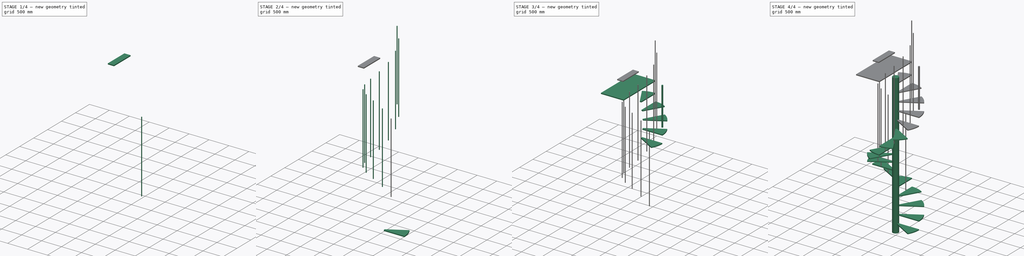
[diagram: build sequence overview — one tinted view per stage of 4, left to right]
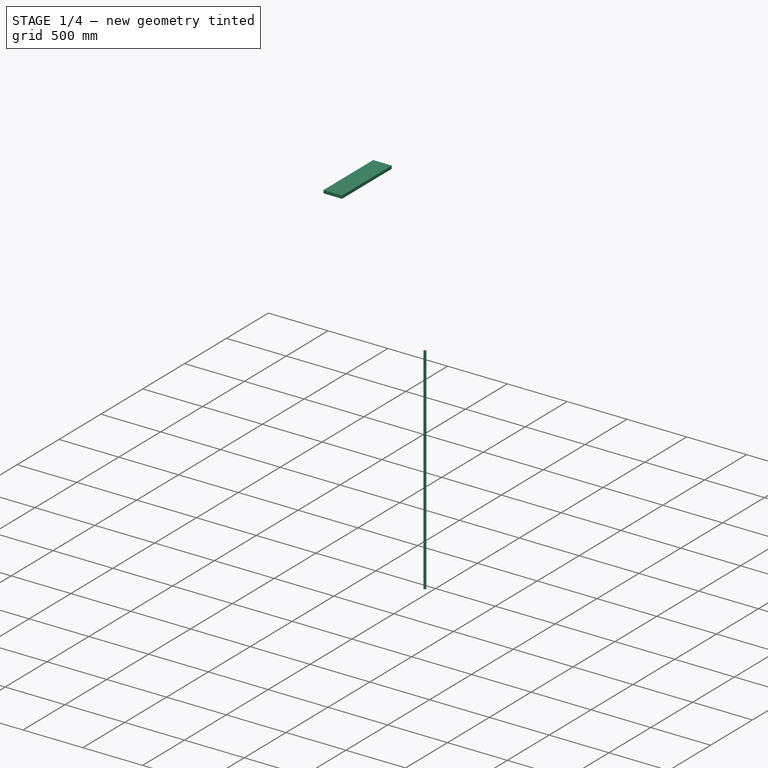
[diagram: stage 1 of 4 — iso view after this stage's code; geometry added in this stage tinted green]
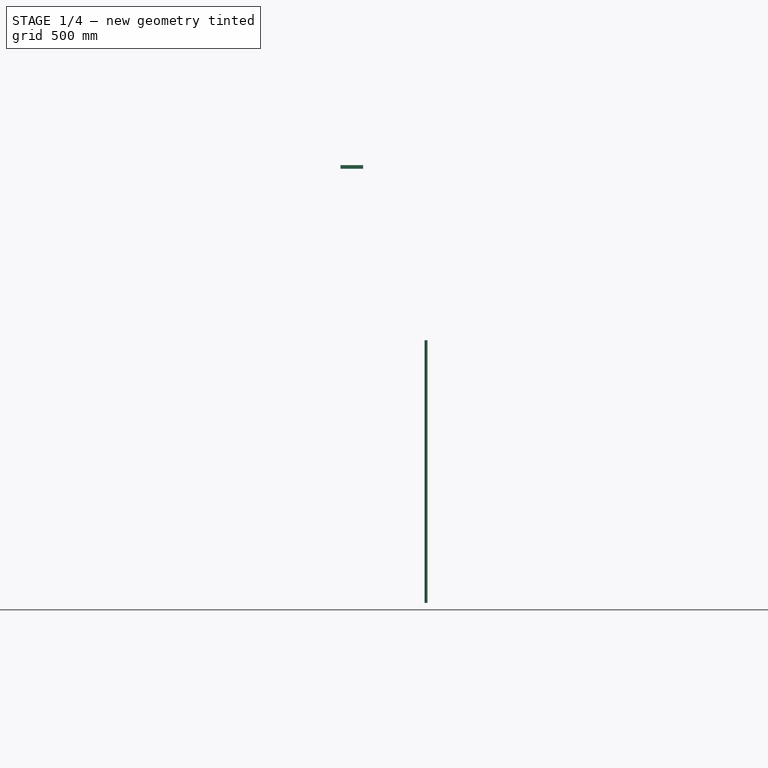
[diagram: stage 1 of 4 — front view after this stage's code; geometry added in this stage tinted green]
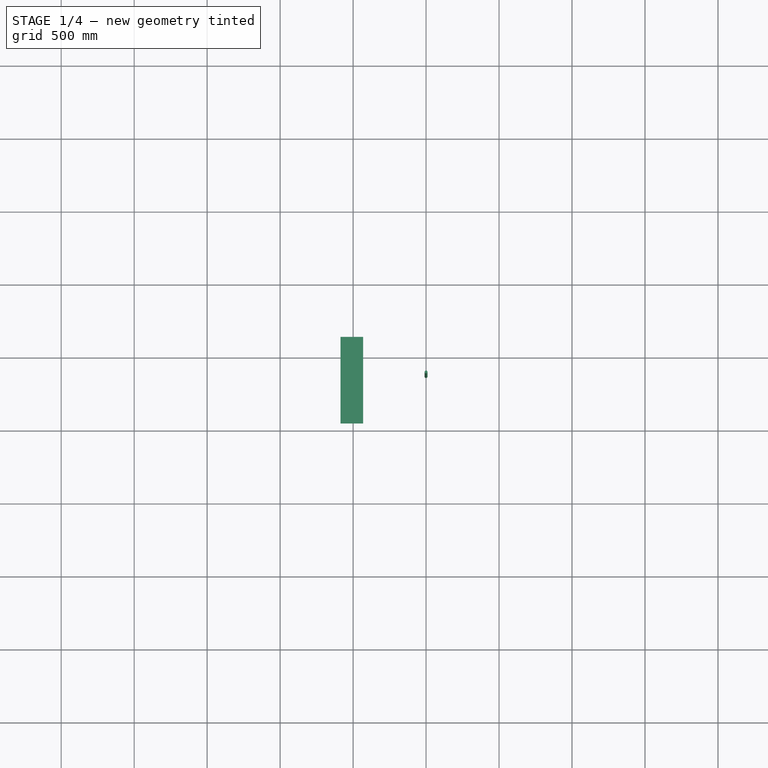
[diagram: stage 1 of 4 — top view after this stage's code; geometry added in this stage tinted green]
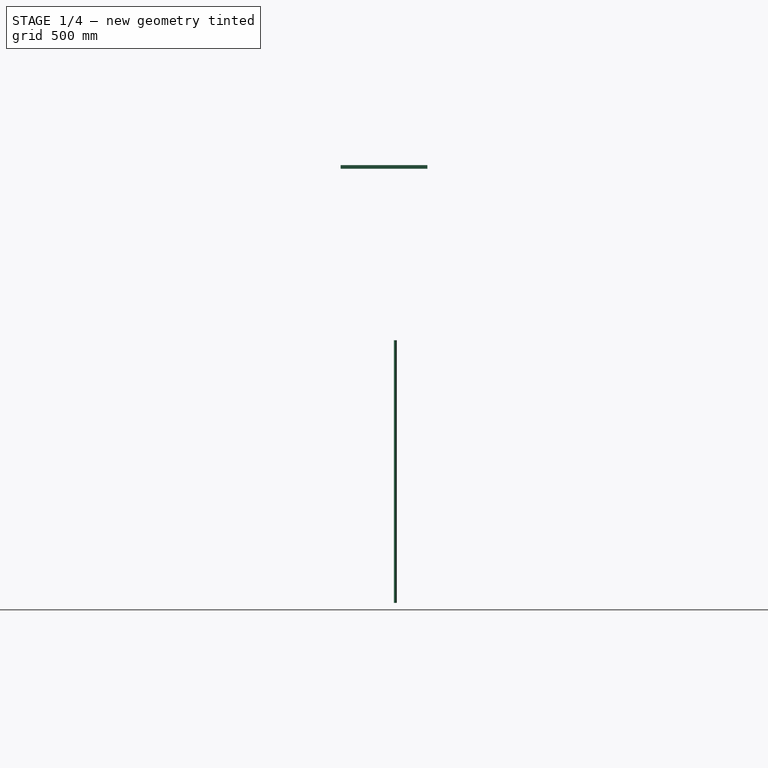
[diagram: stage 1 of 4 — right view after this stage's code; geometry added in this stage tinted green]
FCSTD DOCUMENT  (FreeCAD 0.16R6710 (Git))
Label: stair
License: All rights reserved
LicenseURL: http://en.wikipedia.org/wiki/All_rights_reserved
objects: Sketcher::SketchObject×5, Part::Extrusion×4, Part::FeaturePython×3, Part::Cylinder×2, App::MeasureDistance×1
note: 14 computed .brp shape members not serialized (recipe doc carries the construction recipe); baked Part::Feature solids carry a one-line shape summary decoded from their .brp

FEATURE [Sketcher::SketchObject] Sketch003
  Placement = pos=(0,0,200) rot=(0,0,1;0rad)
  sketch-geometry (4):
    g0: LineSegment StartX=-746.59 StartY=592.517 StartZ=0 EndX=-591.492 EndY=592.517 EndZ=0
    g1: LineSegment StartX=-591.492 StartY=592.517 StartZ=0 EndX=-591.492 EndY=-1.13308 EndZ=0
    g2: LineSegment StartX=-591.492 StartY=-1.13308 StartZ=0 EndX=-746.59 EndY=-1.13308 EndZ=0
    g3: LineSegment StartX=-746.59 StartY=-1.13308 StartZ=0 EndX=-746.59 EndY=592.517 EndZ=0
  constraints (8):
    c: Coincident(g0,g1)
    c: Coincident(g1,g2)
    c: Coincident(g2,g3)
    c: Coincident(g3,g0)
    c: Horizontal(g0)
    c: Horizontal(g2)
    c: Vertical(g1)
    c: Vertical(g3)
FEATURE [Part::Extrusion] Extrude004
  Base = -> Sketch003
  Dir = (0,0,25)
  Placement = pos=(160,0,3400) rot=(0,0,1;0rad)
  Solid = true
FEATURE [Part::Cylinder] Cylinder001  label="Cilindro001"
  Angle = 360
  Height = 1800
  Placement = pos=(0,373,625) rot=(0,0,1;0rad)
  Radius = 10
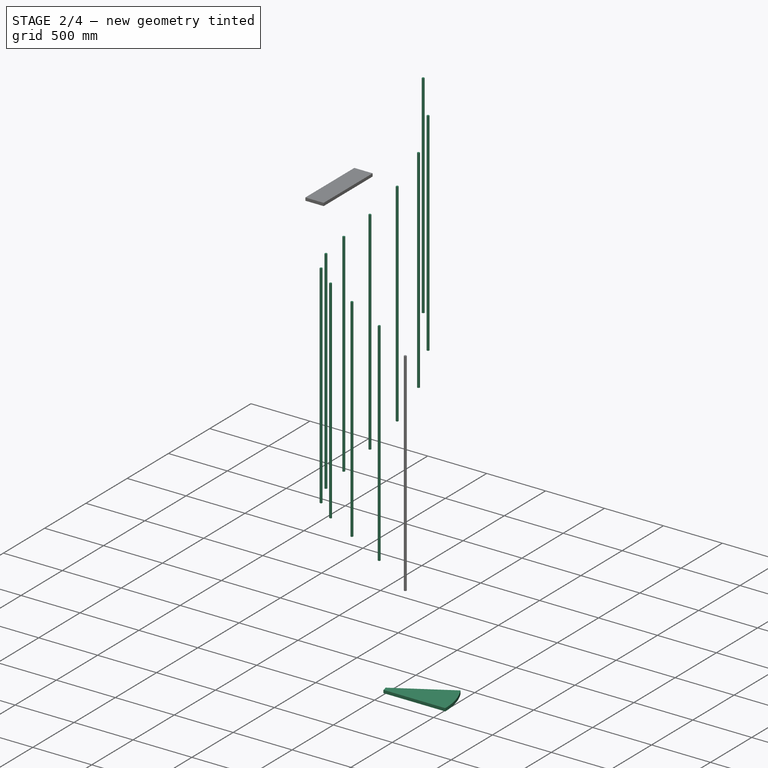
[diagram: stage 2 of 4 — iso view after this stage's code; geometry added in this stage tinted green]
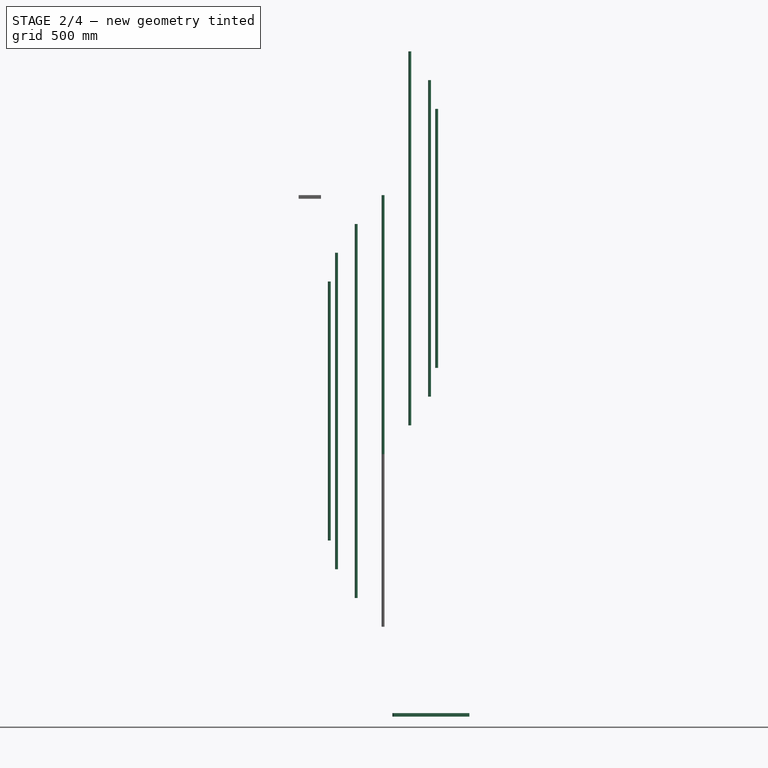
[diagram: stage 2 of 4 — front view after this stage's code; geometry added in this stage tinted green]
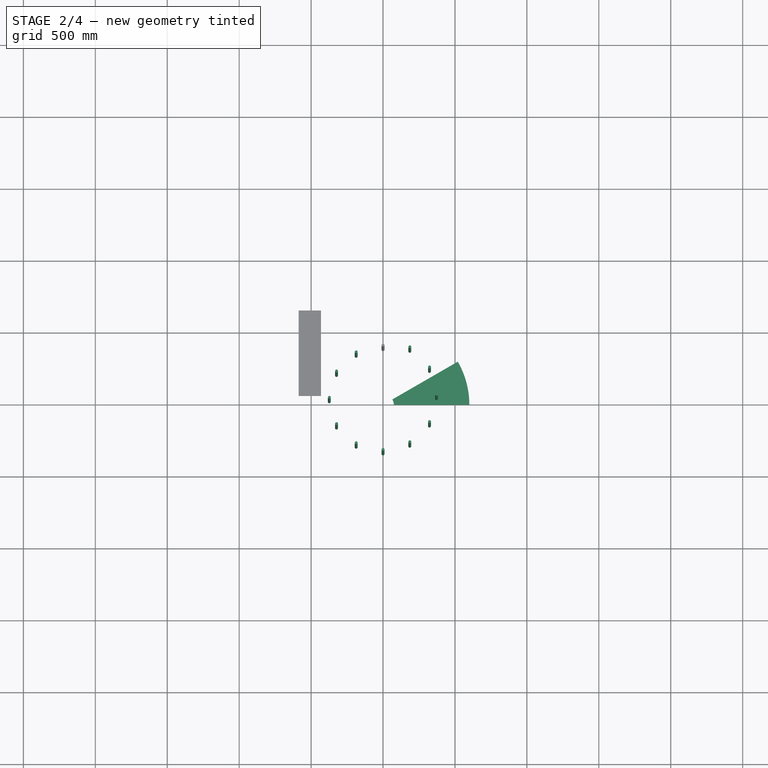
[diagram: stage 2 of 4 — top view after this stage's code; geometry added in this stage tinted green]
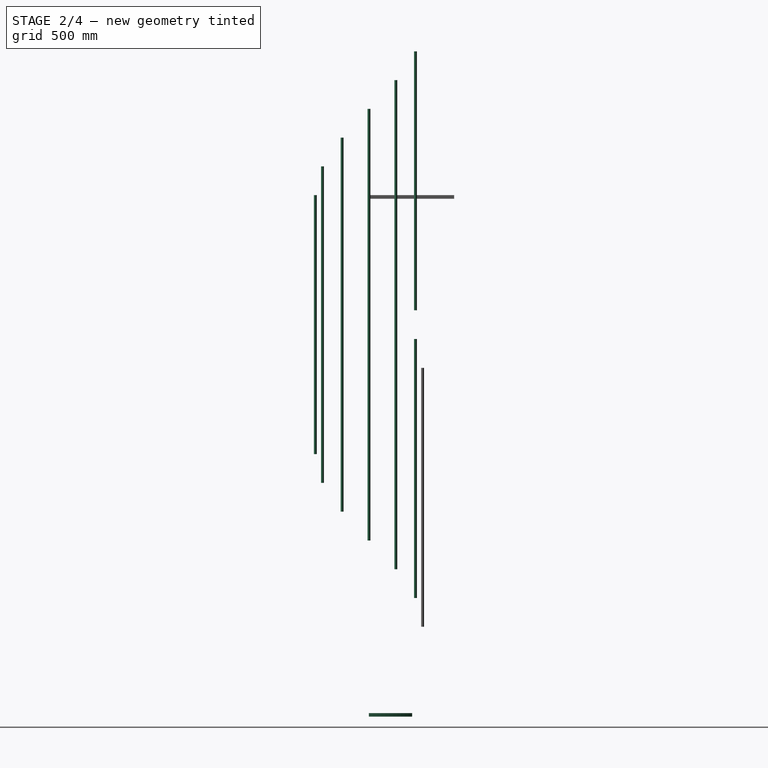
[diagram: stage 2 of 4 — right view after this stage's code; geometry added in this stage tinted green]
FEATURE [Sketcher::SketchObject] Sketch
  sketch-geometry (4):
    g0: ArcOfCircle CenterX=0 CenterY=0 CenterZ=0 NormalX=0 NormalY=0 NormalZ=1 Radius=75 StartAngle=0 EndAngle=0.523599
    g1: ArcOfCircle CenterX=0 CenterY=0 CenterZ=0 NormalX=0 NormalY=0 NormalZ=1 Radius=600 StartAngle=0 EndAngle=0.523599
    g2: LineSegment StartX=64.9519 StartY=37.5 StartZ=0 EndX=519.615 EndY=300 EndZ=0
    g3: LineSegment StartX=75 StartY=0 StartZ=0 EndX=600 EndY=0 EndZ=0
  constraints (9):
    c: Radius(g0) = 75
    c: Coincident(g1,g-1)
    c: Radius(g1) = 600
    c: Horizontal(g3)
    c: Angle(g3,g2) = 0.523599
    c: Coincident(g1,g3)
    c: Coincident(g1,g2)
    c: Coincident(g3,g0)
    c: Coincident(g2,g0)
FEATURE [Part::Extrusion] Extrude  label="step"
  Base = -> Sketch
  Dir = (0,0,25)
  Solid = true
FEATURE [Part::FeaturePython] Array003  # Draft array (typed FeaturePython)
  Angle = 360
  ArrayType = 1
  Axis = (0,0,1)
  Base = -> Cylinder001
  Center = (0,0,0)
  Fuse = false
  IntervalAxis = (0,0,200)
  IntervalX = (1,0,0)
  IntervalY = (0,1,0)
  IntervalZ = (0,0,0)
  NumberPolar = 12
  NumberX = 2
  NumberY = 2
  NumberZ = 1
FEATURE [App::MeasureDistance] Distance  label="Distance: 3.601,46 mm"
  Distance = 3601.46
  P1 = (-74.4086,9.39999,-200)
  P2 = (-14.0536,-73.6715,3400)
FEATURE [Sketcher::SketchObject] Sketch004
  Placement = pos=(160,0,3625) rot=(0,0,1;0rad)
  Support = -> Extrude004 [Face6]
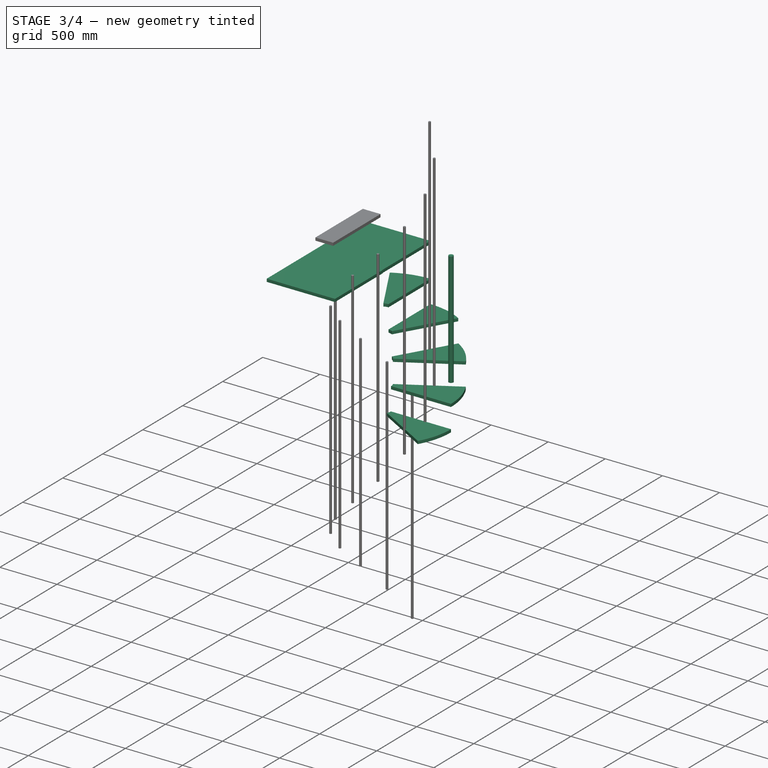
[diagram: stage 3 of 4 — iso view after this stage's code; geometry added in this stage tinted green]
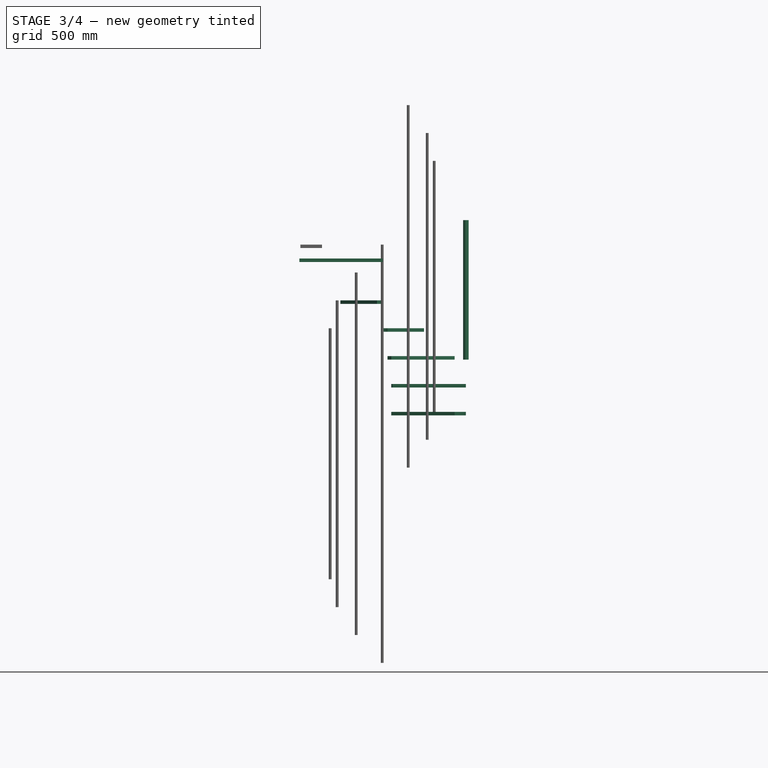
[diagram: stage 3 of 4 — front view after this stage's code; geometry added in this stage tinted green]
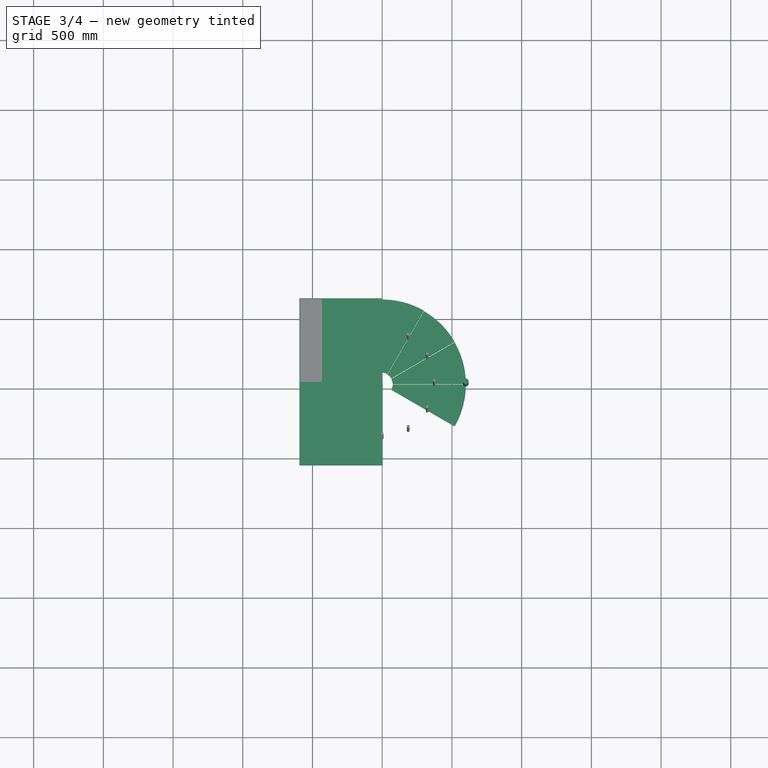
[diagram: stage 3 of 4 — top view after this stage's code; geometry added in this stage tinted green]
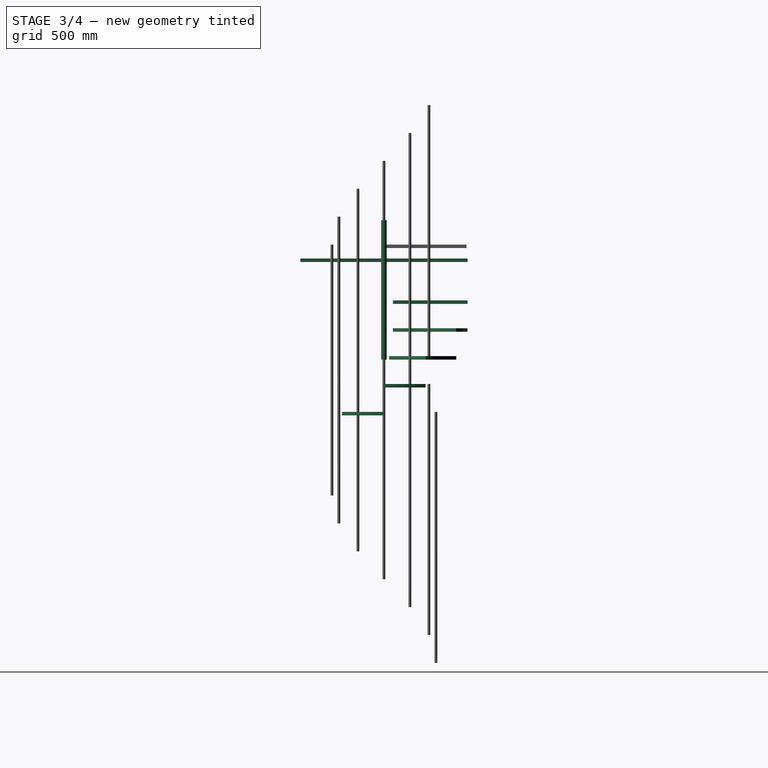
[diagram: stage 3 of 4 — right view after this stage's code; geometry added in this stage tinted green]
FEATURE [Sketcher::SketchObject] Sketch002  label="Patform"
  Placement = pos=(0,0,3400) rot=(0,0,1;1.5708rad)
  sketch-geometry (6):
    g0: LineSegment StartX=-598.714 StartY=594.352 StartZ=0 EndX=600.731 EndY=594.352 EndZ=0
    g1: LineSegment StartX=0 StartY=-3.52055 StartZ=0 EndX=-598.714 EndY=-3.52055 EndZ=0
    g2: LineSegment StartX=-598.714 StartY=-3.52055 StartZ=0 EndX=-598.714 EndY=594.352 EndZ=0
    g3: LineSegment StartX=0 StartY=0 StartZ=0 EndX=600.731 EndY=0 EndZ=0
    g4: LineSegment StartX=0 StartY=0 StartZ=0 EndX=0 EndY=-3.52055 EndZ=0
    g5: LineSegment StartX=600.731 StartY=594.352 StartZ=0 EndX=600.731 EndY=0 EndZ=0
  constraints (13):
    c: Coincident(g1,g2)
    c: Coincident(g2,g0)
    c: Horizontal(g0)
    c: Horizontal(g1)
    c: Vertical(g2)
    c: Coincident(g3,g-1)
    c: Horizontal(g3)
    c: Coincident(g4,g-1)
    c: Vertical(g4)
    c: Coincident(g5,g0)
    c: Coincident(g5,g3)
    c: Vertical(g5)
    c: Coincident(g4,g1)
FEATURE [Part::Extrusion] Extrude003  label="Platform"
  Base = -> Sketch002
  Dir = (0,0,25)
  Placement = pos=(0,0,100) rot=(0,0,1;0rad)
  Solid = true
FEATURE [Part::Cylinder] Cylinder  label="Cilindro"
  Angle = 360
  Height = 1000
  Placement = pos=(600,0,2800) rot=(0,0,1;0rad)
  Radius = 20
FEATURE [Part::FeaturePython] Array002  label="Step_Array001"  # Draft array (typed FeaturePython)
  Angle = 120
  ArrayType = 1
  Axis = (0,0,1)
  Base = -> Extrude
  Center = (0,0,0)
  Fuse = false
  IntervalAxis = (0,0,200)
  IntervalX = (1,0,0)
  IntervalY = (0,1,0)
  IntervalZ = (0,0,1)
  NumberPolar = 5
  NumberX = 2
  NumberY = 2
  NumberZ = 1
  Placement = pos=(0,0,2400) rot=(0,0,-1;0.523599rad)
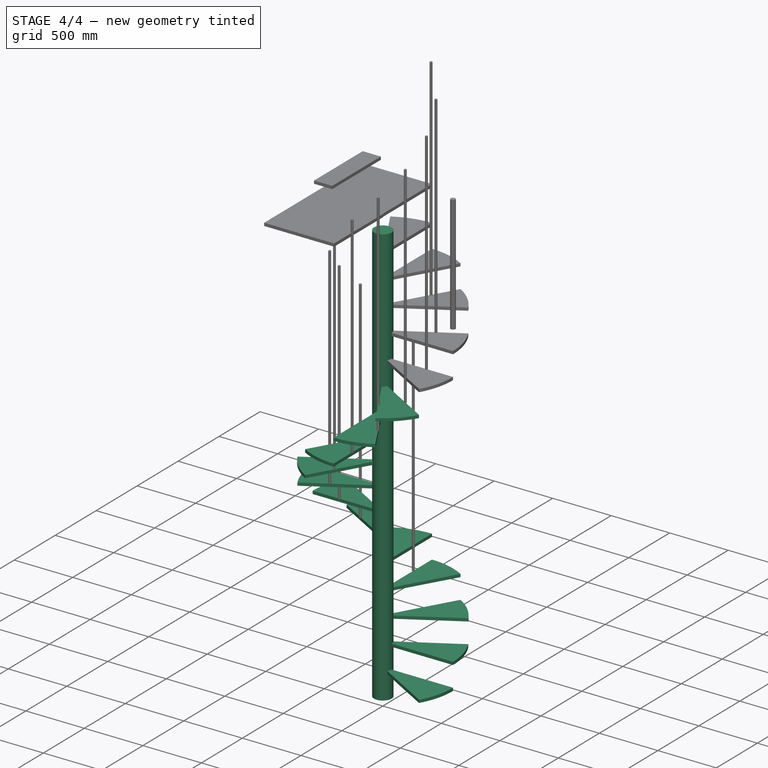
[diagram: stage 4 of 4 — iso view after this stage's code; geometry added in this stage tinted green]
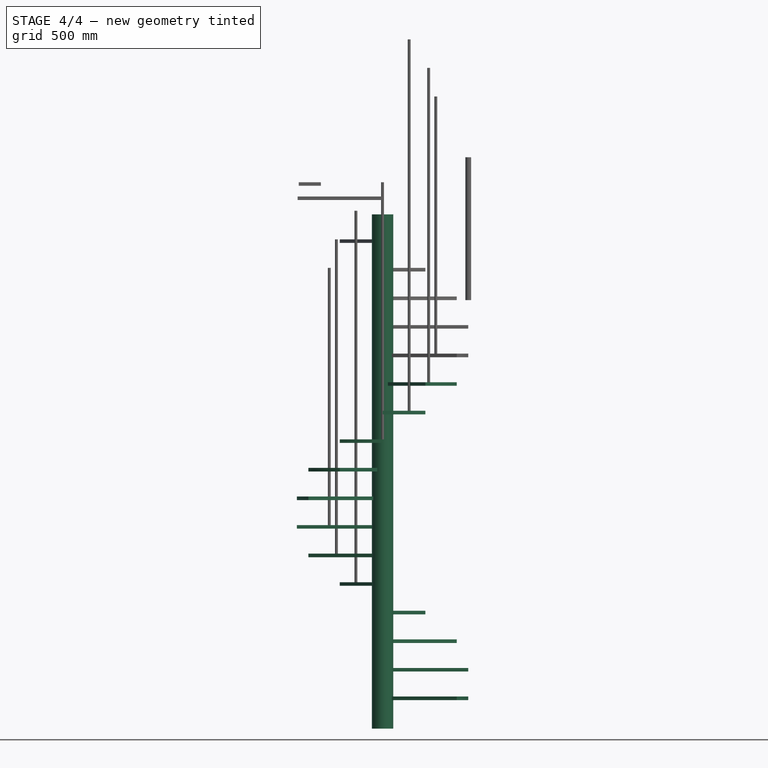
[diagram: stage 4 of 4 — front view after this stage's code; geometry added in this stage tinted green]
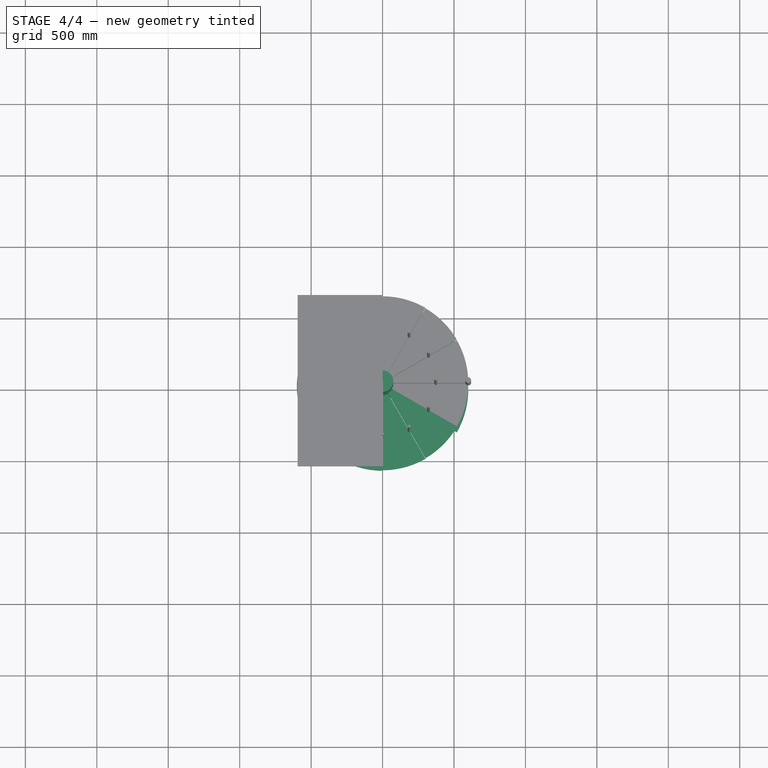
[diagram: stage 4 of 4 — top view after this stage's code; geometry added in this stage tinted green]
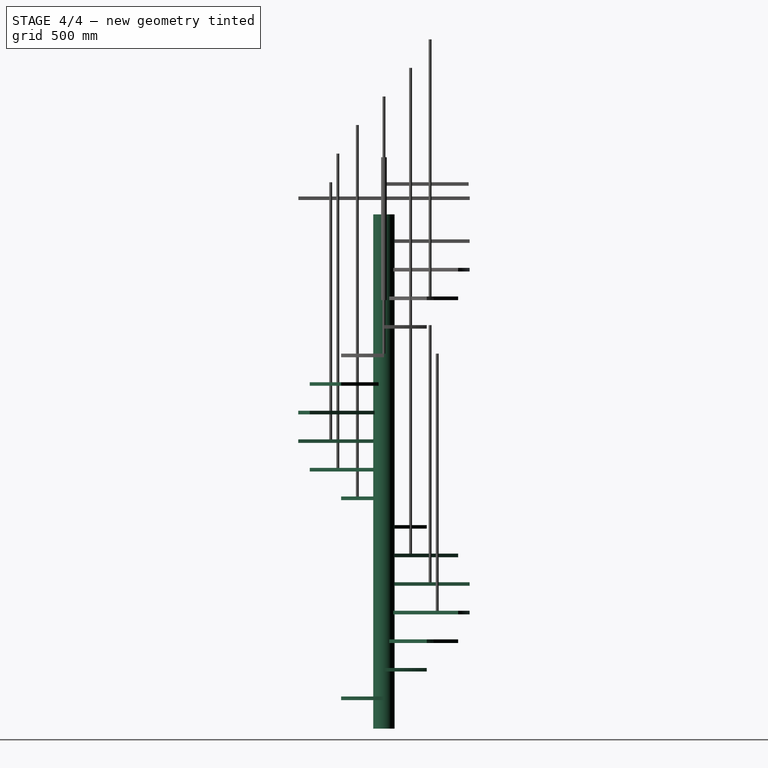
[diagram: stage 4 of 4 — right view after this stage's code; geometry added in this stage tinted green]
FEATURE [Part::FeaturePython] Array  label="Step_Array"  # Draft array (typed FeaturePython)
  Angle = 360
  ArrayType = 1
  Axis = (0,0,1)
  Base = -> Extrude
  Center = (0,0,0)
  Fuse = false
  IntervalAxis = (0,0,200)
  IntervalX = (1,0,0)
  IntervalY = (0,1,0)
  IntervalZ = (0,0,1)
  NumberPolar = 12
  NumberX = 2
  NumberY = 2
  NumberZ = 1
  Placement = pos=(0,0,0) rot=(0,0,-1;0.523599rad)
FEATURE [Sketcher::SketchObject] Sketch001  label="column"
  sketch-geometry (1):
    g0: Circle CenterX=0 CenterY=0 CenterZ=0 NormalX=0 NormalY=0 NormalZ=1 Radius=75
  constraints (2):
    c: Coincident(g0,g-1)
    c: Radius(g0) = 75
FEATURE [Part::Extrusion] Extrude001
  Base = -> Sketch001
  Dir = (0,0,3600)
  Placement = pos=(0,0,-200) rot=(0,0,1;0rad)
  Solid = true
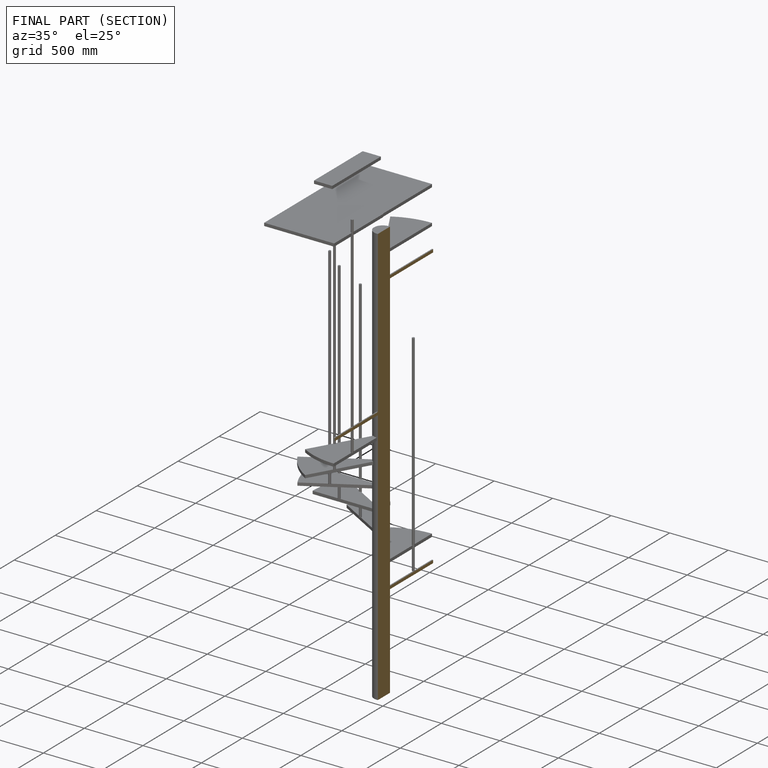
[diagram: finished part — half-section view (interior)]
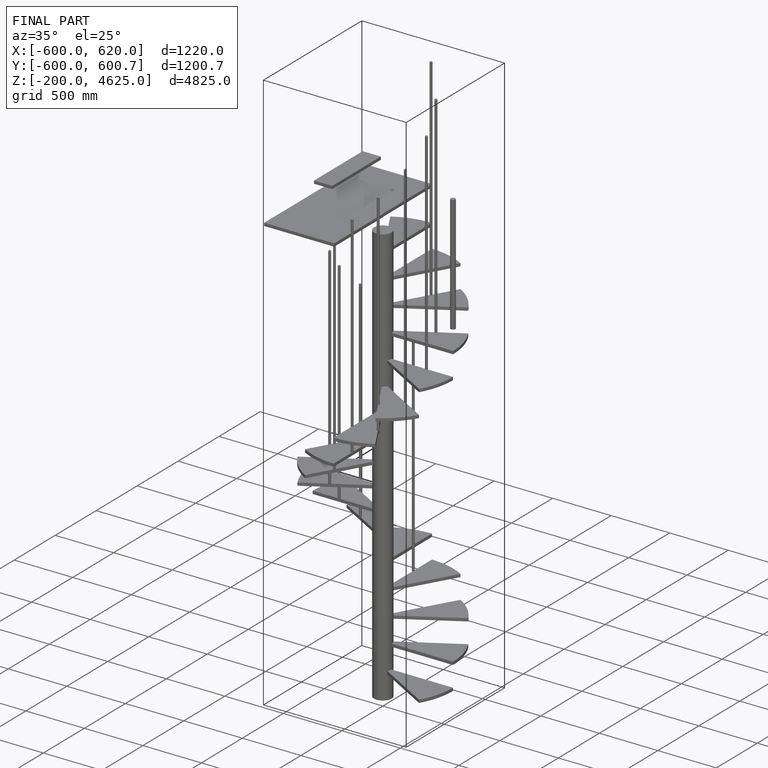
[diagram: finished part — iso view with bounding-box wireframe]
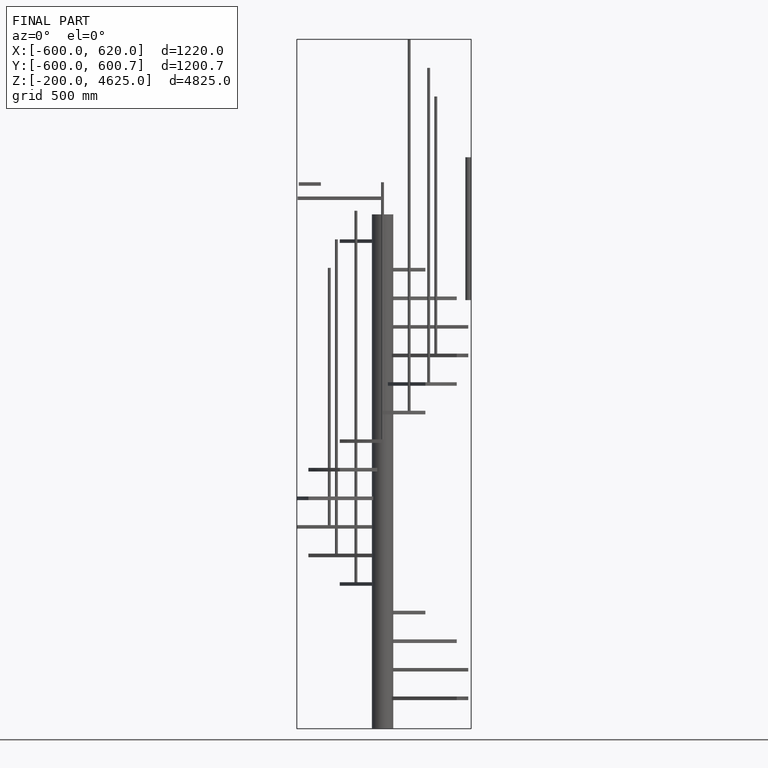
[diagram: finished part — front view with bounding-box wireframe]
